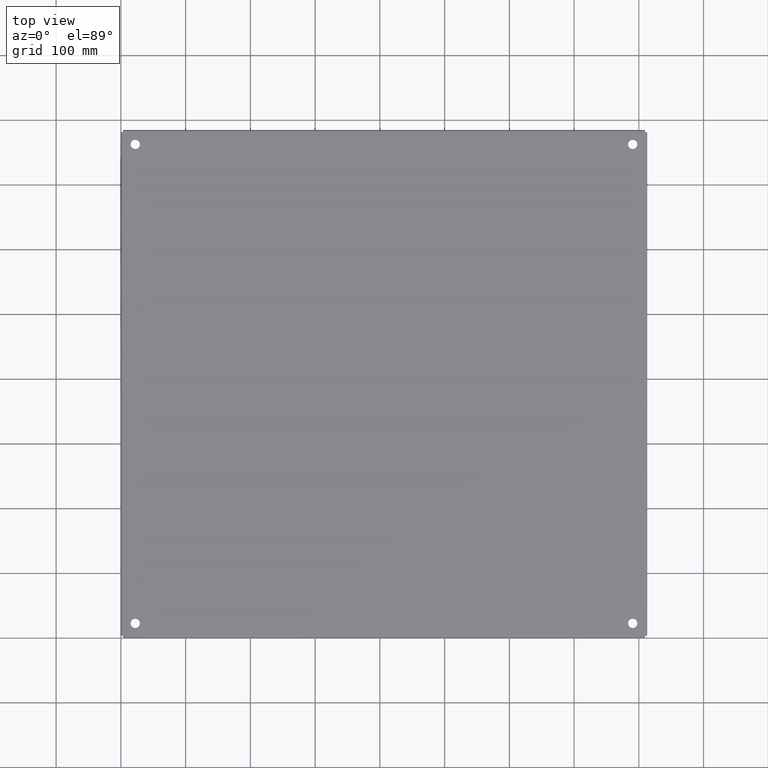
[diagram: clean part render]
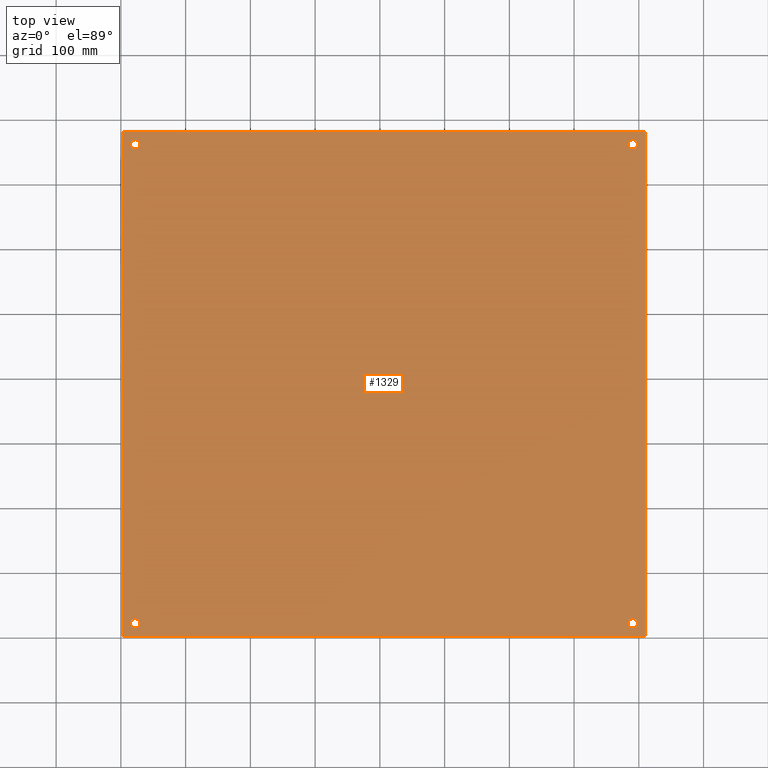
[diagram: same view with one face highlighted and labeled with its STEP entity id]
A machine part, top view. The second image highlights one B-rep face of the part: STEP entity #1329.
In plain terms, the highlighted planar face has unit normal (0, 0, 1).
Its self-contained STEP definition (entity closure, byte-faithful):
#79=CARTESIAN_POINT('',(31.406500000000005,30.004999999999988,0.09375));
#80=VERTEX_POINT('',#79);
#81=CARTESIAN_POINT('',(31.125000000000004,30.004999999999988,0.09375));
#82=DIRECTION('',(0.0,0.0,-1.0));
#83=DIRECTION('',(1.0,0.0,0.0));
#84=AXIS2_PLACEMENT_3D('',#81,#82,#83);
#85=CIRCLE('',#84,0.2815);
#86=EDGE_CURVE('',#80,#80,#85,.T.);
#107=CARTESIAN_POINT('',(1.156499999999991,30.004999999999988,0.09375));
#108=VERTEX_POINT('',#107);
#109=CARTESIAN_POINT('',(0.874999999999991,30.004999999999988,0.09375));
#110=DIRECTION('',(0.0,0.0,-1.0));
#111=DIRECTION('',(1.0,0.0,0.0));
#112=AXIS2_PLACEMENT_3D('',#109,#110,#111);
#113=CIRCLE('',#112,0.2815);
#114=EDGE_CURVE('',#108,#108,#113,.T.);
#135=CARTESIAN_POINT('',(1.156499999999976,0.875,0.09375));
#136=VERTEX_POINT('',#135);
#137=CARTESIAN_POINT('',(0.874999999999976,0.875,0.09375));
#138=DIRECTION('',(0.0,0.0,-1.0));
#139=DIRECTION('',(1.0,0.0,0.0));
#140=AXIS2_PLACEMENT_3D('',#137,#138,#139);
#141=CIRCLE('',#140,0.2815);
#142=EDGE_CURVE('',#136,#136,#141,.T.);
#163=CARTESIAN_POINT('',(31.406499999999994,0.875,0.09375));
#164=VERTEX_POINT('',#163);
#165=CARTESIAN_POINT('',(31.124999999999993,0.875,0.09375));
#166=DIRECTION('',(0.0,0.0,-1.0));
#167=DIRECTION('',(1.0,0.0,0.0));
#168=AXIS2_PLACEMENT_3D('',#165,#166,#167);
#169=CIRCLE('',#168,0.2815);
#170=EDGE_CURVE('',#164,#164,#169,.T.);
#201=CARTESIAN_POINT('',(31.890649999999997,30.770650000000018,0.09375));
#202=VERTEX_POINT('',#201);
#213=CARTESIAN_POINT('',(31.890650000000001,0.10935,0.09375));
#214=VERTEX_POINT('',#213);
#215=CARTESIAN_POINT('',(31.890650000000001,0.10935,0.09375));
#216=DIRECTION('',(0.0,1.0,0.0));
#217=VECTOR('',#216,30.661300000000018);
#218=LINE('',#215,#217);
#219=EDGE_CURVE('',#214,#202,#218,.T.);
#497=CARTESIAN_POINT('',(0.109349999999991,30.77065,0.09375));
#498=VERTEX_POINT('',#497);
#509=CARTESIAN_POINT('',(31.890649999999997,30.770650000000021,0.09375));
#510=DIRECTION('',(-1.0,0.0,0.0));
#511=VECTOR('',#510,31.781300000000005);
#512=LINE('',#509,#511);
#513=EDGE_CURVE('',#202,#498,#512,.T.);
#777=CARTESIAN_POINT('',(0.10935,0.10935,0.09375));
#778=VERTEX_POINT('',#777);
#789=CARTESIAN_POINT('',(0.109349999999992,30.770649999999996,0.09375));
#790=DIRECTION('',(0.0,-1.0,0.0));
#791=VECTOR('',#790,30.661299999999997);
#792=LINE('',#789,#791);
#793=EDGE_CURVE('',#498,#778,#792,.T.);
#1067=CARTESIAN_POINT('',(0.10935,0.10935,0.09375));
#1068=DIRECTION('',(1.0,0.0,0.0));
#1069=VECTOR('',#1068,31.781300000000005);
#1070=LINE('',#1067,#1069);
#1071=EDGE_CURVE('',#778,#214,#1070,.T.);
#1306=CARTESIAN_POINT('',(15.999999999999998,15.440000000000003,0.09375));
#1307=DIRECTION('',(0.0,0.0,1.0));
#1308=DIRECTION('',(1.0,0.0,0.0));
#1309=AXIS2_PLACEMENT_3D('',#1306,#1307,#1308);
#1310=PLANE('',#1309);
#1311=ORIENTED_EDGE('',*,*,#219,.T.);
#1312=ORIENTED_EDGE('',*,*,#513,.T.);
#1313=ORIENTED_EDGE('',*,*,#793,.T.);
#1314=ORIENTED_EDGE('',*,*,#1071,.T.);
#1315=EDGE_LOOP('',(#1311,#1312,#1313,#1314));
#1316=FACE_OUTER_BOUND('',#1315,.T.);
#1317=ORIENTED_EDGE('',*,*,#86,.T.);
#1318=EDGE_LOOP('',(#1317));
#1319=FACE_BOUND('',#1318,.T.);
#1320=ORIENTED_EDGE('',*,*,#114,.T.);
#1321=EDGE_LOOP('',(#1320));
#1322=FACE_BOUND('',#1321,.T.);
#1323=ORIENTED_EDGE('',*,*,#142,.T.);
#1324=EDGE_LOOP('',(#1323));
#1325=FACE_BOUND('',#1324,.T.);
#1326=ORIENTED_EDGE('',*,*,#170,.T.);
#1327=EDGE_LOOP('',(#1326));
#1328=FACE_BOUND('',#1327,.T.);
#1329=ADVANCED_FACE('',(#1316,#1319,#1322,#1325,#1328),#1310,.T.);